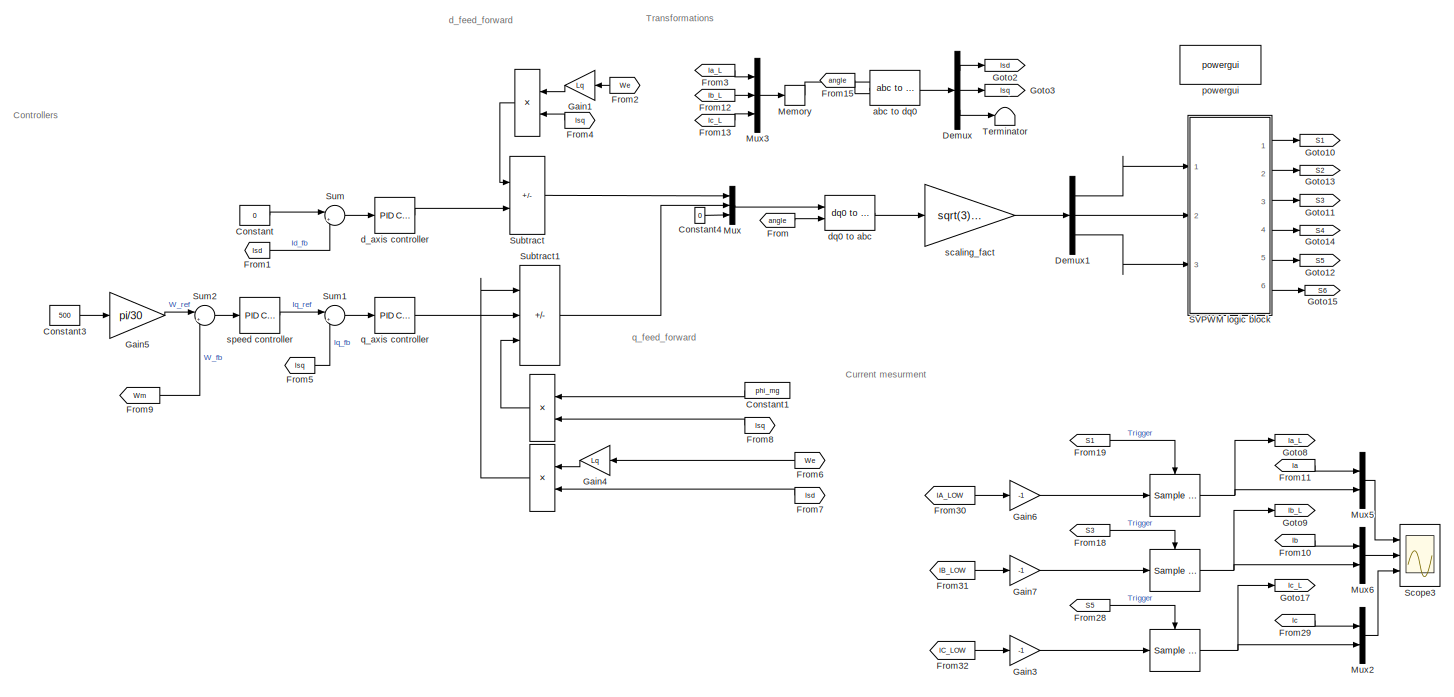
[diagram: root canvas - part 1/3, top left region]
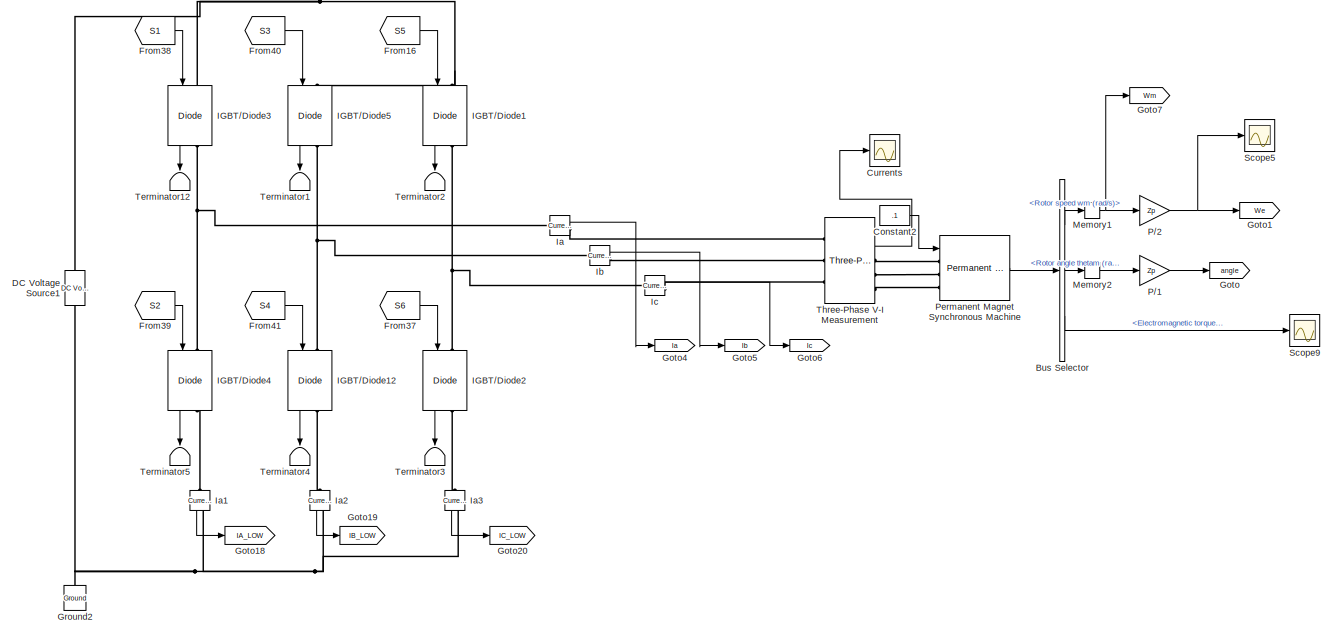
[diagram: root canvas - part 2/3, bottom left region]
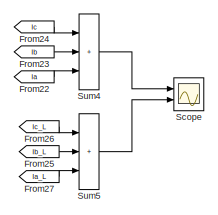
[diagram: root canvas - part 3/3, bottom right region]
MODEL slx_8dce9d9f1083
KIND model
CONFIG AbsTol = auto
CONFIG EnableMultiTasking = off
CONFIG FixedStep = auto
CONFIG InitFcn = %Rs = 2.98;\n%phi_mg = .125;\n%Jm = .47/10000;\n%Bv = 1.1/10000;\n%Zp = 2;\n%Ld = 7/1000;\n%Lq = 7/1000;\n%Tl = 0;\n\nRs = 4.3;\nphi_mg = .272;\nJm = .000179;\nBv = 1.1/10000;\nZp = 4;\nLd = 67e-3;\nLq = 67e-3;\nTl = 0;\n\nVdc = 220*2*sqrt(2);\n\n
CONFIG MaxStep = 1e-3
CONFIG MinStep = auto
CONFIG RelTol = 1e-3
CONFIG SampleTimeConstraint = Unconstrained
CONFIG Solver = ode45
CONFIG SolverName = ode45
CONFIG StartTime = 0.0
CONFIG StopTime = .5
BLOCK [Reference]     REF=dspsigops/Sample
and Hold
  Ports = [1, 1, 0, 1]
  SourceBlock = dspsigops/Sample\nand Hold
  SourceProductBaseCode = DS
  SourceType = Sample and Hold
BLOCK [Reference]        REF=dspsigops/Sample
and Hold
  Ports = [1, 1, 0, 1]
  SourceBlock = dspsigops/Sample\nand Hold
  SourceProductBaseCode = DS
  SourceType = Sample and Hold
BLOCK [Product]          
  NameLocation = top
  Ports = [2, 1]
BLOCK [Product]            
  NameLocation = top
  Ports = [2, 1]
BLOCK [Product]                          
  NameLocation = top
  Ports = [2, 1]
BLOCK [Reference]                                   REF=dspsigops/Sample
and Hold
  Ports = [1, 1, 0, 1]
  SourceBlock = dspsigops/Sample\nand Hold
  SourceProductBaseCode = DS
  SourceType = Sample and Hold
BLOCK [BusSelector] Bus Selector
  OutputSignals = Rotor speed wm (rad/s),Rotor angle thetam (rad),Electromagnetic torque Te (N*m)
  Ports = [1, 3]
BLOCK [Constant] Constant
  Value = 0
BLOCK [Constant] Constant1
  NameLocation = top
  Value = phi_mg
BLOCK [Constant] Constant2
  Value = .1
BLOCK [Constant] Constant3
  Value = 500
BLOCK [Constant] Constant4
  Value = 0
BLOCK [Scope] Currents
  Floating = off
  NumInputPorts = 1
  Ports = [1]
  ScopeSpecificationString = Simulink.scopes.TimeScopeBlockCfg('CurrentConfiguration', extmgr.ConfigurationSet(extmgr.Configuration('Core','General UI',true),extmgr.Configuration('Core','Source UI',true),extmgr.Configuration('Sources','WiredSimulink',true,'DataLoggingVariableName','ScopeData8','DataLoggingSaveFormat','StructureWithTime','DataLoggingDecimation','1','DataLoggingDecimateData',true),extmgr.Configuration('Visuals'...<+1854ch>
BLOCK [Reference] DC Voltage Source1  REF=powerlib/Electrical
Sources/DC Voltage Source
  NameLocation = right
  Ports = [0, 0, 0, 0, 0, 1, 1]
  SourceBlock = powerlib/Electrical\nSources/DC Voltage Source
  SourceProductBaseCode = PS
  SourceType = DC Voltage Source
BLOCK [Demux] Demux
  Outputs = 3
  Ports = [1, 3]
BLOCK [Demux] Demux1
  Outputs = 3
  Ports = [1, 3]
BLOCK [From] From
  GotoTag = angle
BLOCK [From] From1
  GotoTag = Isd
BLOCK [From] From10
  GotoTag = Ib
BLOCK [From] From11
  GotoTag = Ia
BLOCK [From] From12
  GotoTag = Ib_L
BLOCK [From] From13
  GotoTag = Ic_L
BLOCK [From] From15
  GotoTag = angle
BLOCK [From] From16
  GotoTag = S5
BLOCK [From] From18
  GotoTag = S3
BLOCK [From] From19
  GotoTag = S1
BLOCK [From] From2
  GotoTag = We
  NameLocation = top
BLOCK [From] From22
  GotoTag = Ia
BLOCK [From] From23
  GotoTag = Ib
BLOCK [From] From24
  GotoTag = Ic
BLOCK [From] From25
  GotoTag = Ib_L
BLOCK [From] From26
  GotoTag = Ic_L
BLOCK [From] From27
  GotoTag = Ia_L
BLOCK [From] From28
  GotoTag = S5
BLOCK [From] From29
  GotoTag = Ic
BLOCK [From] From3
  GotoTag = Ia_L
BLOCK [From] From30
  GotoTag = IA_LOW
BLOCK [From] From31
  GotoTag = IB_LOW
BLOCK [From] From32
  GotoTag = IC_LOW
BLOCK [From] From37
  GotoTag = S6
BLOCK [From] From38
  GotoTag = S1
BLOCK [From] From39
  GotoTag = S2
BLOCK [From] From4
  GotoTag = Isq
BLOCK [From] From40
  GotoTag = S3
BLOCK [From] From41
  GotoTag = S4
BLOCK [From] From5
  GotoTag = Isq
BLOCK [From] From6
  GotoTag = We
  NameLocation = top
BLOCK [From] From7
  GotoTag = Isd
BLOCK [From] From8
  GotoTag = Isq
BLOCK [From] From9
  GotoTag = Wm
BLOCK [Gain] Gain1
  Gain = Lq
  NameLocation = top
BLOCK [Gain] Gain3
  Gain = -1
BLOCK [Gain] Gain4
  Gain = Lq
  NameLocation = top
BLOCK [Gain] Gain5
  Gain = pi/30
BLOCK [Gain] Gain6
  Gain = -1
BLOCK [Gain] Gain7
  Gain = -1
BLOCK [Goto] Goto
  GotoTag = angle
BLOCK [Goto] Goto1
  GotoTag = We
BLOCK [Goto] Goto10
  GotoTag = S1
BLOCK [Goto] Goto11
  GotoTag = S3
BLOCK [Goto] Goto12
  GotoTag = S5
BLOCK [Goto] Goto13
  GotoTag = S2
BLOCK [Goto] Goto14
  GotoTag = S4
BLOCK [Goto] Goto15
  GotoTag = S6
BLOCK [Goto] Goto17
  GotoTag = Ic_L
BLOCK [Goto] Goto18
  GotoTag = IA_LOW
BLOCK [Goto] Goto19
  GotoTag = IB_LOW
BLOCK [Goto] Goto2
  GotoTag = Isd
BLOCK [Goto] Goto20
  GotoTag = IC_LOW
BLOCK [Goto] Goto3
  GotoTag = Isq
BLOCK [Goto] Goto4
  GotoTag = Ia
BLOCK [Goto] Goto5
  GotoTag = Ib
BLOCK [Goto] Goto6
  GotoTag = Ic
BLOCK [Goto] Goto7
  GotoTag = Wm
BLOCK [Goto] Goto8
  GotoTag = Ia_L
BLOCK [Goto] Goto9
  GotoTag = Ib_L
BLOCK [Reference] Ground2  REF=powerlib/Elements/Ground
  NameLocation = right
  Ports = [0, 0, 0, 0, 0, 1]
  SourceBlock = powerlib/Elements/Ground
  SourceProductBaseCode = PS
  SourceType = Ground
BLOCK [Reference] IGBT//Diode1  REF=powerlib/Power
Electronics/IGBT//Diode
  NameLocation = left
  Ports = [1, 1, 0, 0, 0, 1, 1]
  SourceBlock = powerlib/Power\nElectronics/IGBT//Diode
  SourceProductBaseCode = PS
  SourceType = IGBT/Diode
BLOCK [Reference] IGBT//Diode12  REF=powerlib/Power
Electronics/IGBT//Diode
  NameLocation = left
  Ports = [1, 1, 0, 0, 0, 1, 1]
  SourceBlock = powerlib/Power\nElectronics/IGBT//Diode
  SourceProductBaseCode = PS
  SourceType = IGBT/Diode
BLOCK [Reference] IGBT//Diode2  REF=powerlib/Power
Electronics/IGBT//Diode
  NameLocation = left
  Ports = [1, 1, 0, 0, 0, 1, 1]
  SourceBlock = powerlib/Power\nElectronics/IGBT//Diode
  SourceProductBaseCode = PS
  SourceType = IGBT/Diode
BLOCK [Reference] IGBT//Diode3  REF=powerlib/Power
Electronics/IGBT//Diode
  NameLocation = left
  Ports = [1, 1, 0, 0, 0, 1, 1]
  SourceBlock = powerlib/Power\nElectronics/IGBT//Diode
  SourceProductBaseCode = PS
  SourceType = IGBT/Diode
BLOCK [Reference] IGBT//Diode4  REF=powerlib/Power
Electronics/IGBT//Diode
  NameLocation = left
  Ports = [1, 1, 0, 0, 0, 1, 1]
  SourceBlock = powerlib/Power\nElectronics/IGBT//Diode
  SourceProductBaseCode = PS
  SourceType = IGBT/Diode
BLOCK [Reference] IGBT//Diode5  REF=powerlib/Power
Electronics/IGBT//Diode
  NameLocation = left
  Ports = [1, 1, 0, 0, 0, 1, 1]
  SourceBlock = powerlib/Power\nElectronics/IGBT//Diode
  SourceProductBaseCode = PS
  SourceType = IGBT/Diode
BLOCK [Reference] Ia  REF=powerlib/Measurements/Current Measurement
  Ports = [0, 1, 0, 0, 0, 1, 1]
  SourceBlock = powerlib/Measurements/Current Measurement
  SourceProductBaseCode = PS
  SourceType = Current Measurement
BLOCK [Reference] Ia1  REF=powerlib/Measurements/Current Measurement
  NameLocation = left
  Ports = [0, 1, 0, 0, 0, 1, 1]
  SourceBlock = powerlib/Measurements/Current Measurement
  SourceProductBaseCode = PS
  SourceType = Current Measurement
BLOCK [Reference] Ia2  REF=powerlib/Measurements/Current Measurement
  NameLocation = left
  Ports = [0, 1, 0, 0, 0, 1, 1]
  SourceBlock = powerlib/Measurements/Current Measurement
  SourceProductBaseCode = PS
  SourceType = Current Measurement
BLOCK [Reference] Ia3  REF=powerlib/Measurements/Current Measurement
  NameLocation = left
  Ports = [0, 1, 0, 0, 0, 1, 1]
  SourceBlock = powerlib/Measurements/Current Measurement
  SourceProductBaseCode = PS
  SourceType = Current Measurement
BLOCK [Reference] Ib  REF=powerlib/Measurements/Current Measurement
  Ports = [0, 1, 0, 0, 0, 1, 1]
  SourceBlock = powerlib/Measurements/Current Measurement
  SourceProductBaseCode = PS
  SourceType = Current Measurement
BLOCK [Reference] Ic  REF=powerlib/Measurements/Current Measurement
  Ports = [0, 1, 0, 0, 0, 1, 1]
  SourceBlock = powerlib/Measurements/Current Measurement
  SourceProductBaseCode = PS
  SourceType = Current Measurement
BLOCK [Memory] Memory
  NameLocation = top
BLOCK [Memory] Memory1
  NameLocation = top
BLOCK [Memory] Memory2
  NameLocation = top
BLOCK [Mux] Mux
  DisplayOption = bar
  Inputs = 3
  Ports = [3, 1]
BLOCK [Mux] Mux2
  DisplayOption = bar
  Inputs = 2
  Ports = [2, 1]
BLOCK [Mux] Mux3
  DisplayOption = bar
  Inputs = 3
  Ports = [3, 1]
BLOCK [Mux] Mux5
  DisplayOption = bar
  Inputs = 2
  Ports = [2, 1]
BLOCK [Mux] Mux6
  DisplayOption = bar
  Inputs = 2
  Ports = [2, 1]
BLOCK [Gain] P//1
  Gain = Zp
BLOCK [Gain] P//2
  Gain = Zp
BLOCK [Reference] Permanent Magnet Synchronous Machine  REF=powerlib/Machines/Permanent Magnet
Synchronous Machine
  Ports = [1, 1, 0, 0, 0, 3]
  SourceBlock = powerlib/Machines/Permanent Magnet\nSynchronous Machine
  SourceProductBaseCode = PS
  SourceType = Permanent Magnet Synchronous Machine
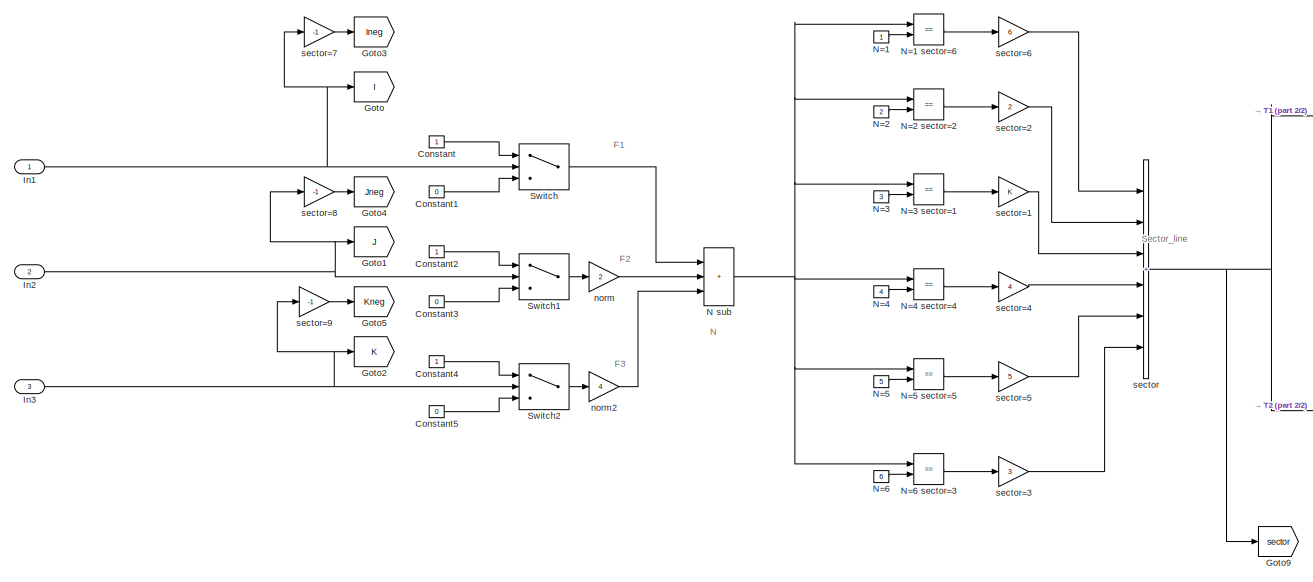
[diagram: SVPWM logic block - part 1/2, left side, full height]
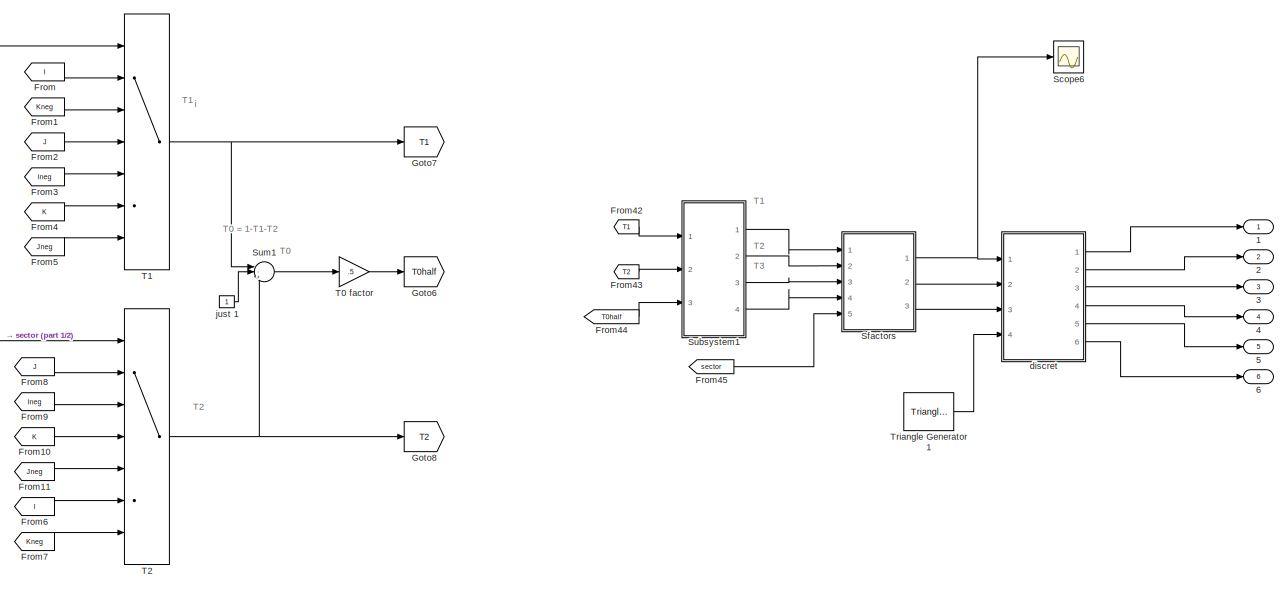
[diagram: SVPWM logic block - part 2/2, right side, full height]
BLOCK [SubSystem] SVPWM logic block
  Ports = [3, 6]
  RequestExecContextInheritance = off
BLOCK [Outport] SVPWM logic block/1
  VectorParamsAs1DForOutWhenUnconnected = off
BLOCK [Outport] SVPWM logic block/2
  Port = 2
  VectorParamsAs1DForOutWhenUnconnected = off
BLOCK [Outport] SVPWM logic block/3
  Port = 3
  VectorParamsAs1DForOutWhenUnconnected = off
BLOCK [Outport] SVPWM logic block/4
  Port = 4
  VectorParamsAs1DForOutWhenUnconnected = off
BLOCK [Outport] SVPWM logic block/5
  Port = 5
  VectorParamsAs1DForOutWhenUnconnected = off
BLOCK [Outport] SVPWM logic block/6
  Port = 6
  VectorParamsAs1DForOutWhenUnconnected = off
BLOCK [Constant] SVPWM logic block/Constant
BLOCK [Constant] SVPWM logic block/Constant1
  Value = 0
BLOCK [Constant] SVPWM logic block/Constant2
BLOCK [Constant] SVPWM logic block/Constant3
  Value = 0
BLOCK [Constant] SVPWM logic block/Constant4
BLOCK [Constant] SVPWM logic block/Constant5
  Value = 0
BLOCK [From] SVPWM logic block/From
  GotoTag = I
BLOCK [From] SVPWM logic block/From1
  GotoTag = Kneg
BLOCK [From] SVPWM logic block/From10
  GotoTag = K
BLOCK [From] SVPWM logic block/From11
  GotoTag = Jneg
BLOCK [From] SVPWM logic block/From2
  GotoTag = J
BLOCK [From] SVPWM logic block/From3
  GotoTag = Ineg
BLOCK [From] SVPWM logic block/From4
  GotoTag = K
BLOCK [From] SVPWM logic block/From42
  GotoTag = T1
BLOCK [From] SVPWM logic block/From43
  GotoTag = T2
BLOCK [From] SVPWM logic block/From44
  GotoTag = T0half
BLOCK [From] SVPWM logic block/From45
  GotoTag = sector
BLOCK [From] SVPWM logic block/From5
  GotoTag = Jneg
BLOCK [From] SVPWM logic block/From6
  GotoTag = I
BLOCK [From] SVPWM logic block/From7
  GotoTag = Kneg
BLOCK [From] SVPWM logic block/From8
  GotoTag = J
BLOCK [From] SVPWM logic block/From9
  GotoTag = Ineg
BLOCK [Goto] SVPWM logic block/Goto
  GotoTag = I
BLOCK [Goto] SVPWM logic block/Goto1
  GotoTag = J
BLOCK [Goto] SVPWM logic block/Goto2
  GotoTag = K
BLOCK [Goto] SVPWM logic block/Goto3
  GotoTag = Ineg
BLOCK [Goto] SVPWM logic block/Goto4
  GotoTag = Jneg
BLOCK [Goto] SVPWM logic block/Goto5
  GotoTag = Kneg
BLOCK [Goto] SVPWM logic block/Goto6
  GotoTag = T0half
BLOCK [Goto] SVPWM logic block/Goto7
  GotoTag = T1
BLOCK [Goto] SVPWM logic block/Goto8
  GotoTag = T2
BLOCK [Goto] SVPWM logic block/Goto9
  GotoTag = sector
BLOCK [Inport] SVPWM logic block/In1
BLOCK [Inport] SVPWM logic block/In2
  Port = 2
BLOCK [Inport] SVPWM logic block/In3
  Port = 3
BLOCK [Sum] SVPWM logic block/N sub
  IconShape = rectangular
  Inputs = +++
  Ports = [3, 1]
BLOCK [Constant] SVPWM logic block/N=1
BLOCK [RelationalOperator] SVPWM logic block/N=1 sector=6
  InputSameDT = off
  Operator = ==
  OutDataTypeStr = boolean
  Ports = [2, 1]
BLOCK [Constant] SVPWM logic block/N=2
  Value = 2
BLOCK [RelationalOperator] SVPWM logic block/N=2 sector=2
  InputSameDT = off
  Operator = ==
  OutDataTypeStr = boolean
  Ports = [2, 1]
BLOCK [Constant] SVPWM logic block/N=3
  Value = 3
BLOCK [RelationalOperator] SVPWM logic block/N=3 sector=1
  InputSameDT = off
  Operator = ==
  OutDataTypeStr = boolean
  Ports = [2, 1]
BLOCK [Constant] SVPWM logic block/N=4
  Value = 4
BLOCK [RelationalOperator] SVPWM logic block/N=4 sector=4
  InputSameDT = off
  Operator = ==
  OutDataTypeStr = boolean
  Ports = [2, 1]
BLOCK [Constant] SVPWM logic block/N=5
  Value = 5
BLOCK [RelationalOperator] SVPWM logic block/N=5 sector=5
  InputSameDT = off
  Operator = ==
  OutDataTypeStr = boolean
  Ports = [2, 1]
BLOCK [Constant] SVPWM logic block/N=6
  Value = 6
BLOCK [RelationalOperator] SVPWM logic block/N=6 sector=3
  InputSameDT = off
  Operator = ==
  OutDataTypeStr = boolean
  Ports = [2, 1]
BLOCK [Scope] SVPWM logic block/Scope6
  Floating = off
  NumInputPorts = 1
  Ports = [1]
  ScopeSpecificationString = Simulink.scopes.TimeScopeBlockCfg('CurrentConfiguration', extmgr.ConfigurationSet(extmgr.Configuration('Core','General UI',true),extmgr.Configuration('Core','Source UI',true),extmgr.Configuration('Sources','WiredSimulink',true,'DataLoggingVariableName','ScopeData14','DataLoggingSaveFormat','StructureWithTime','DataLoggingDecimation','1','DataLoggingDecimateData',true),extmgr.Configuration('Visuals...<+1779ch>
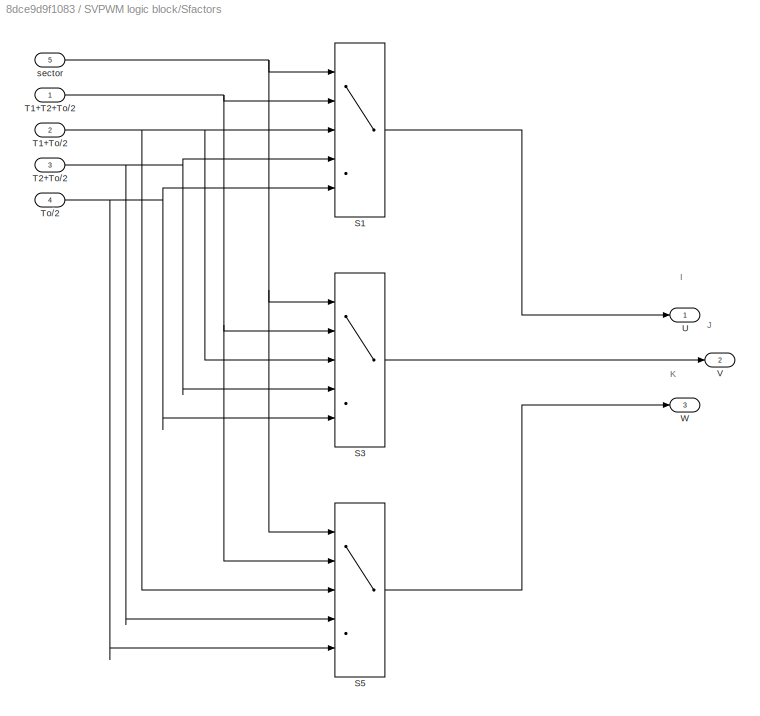
BLOCK [SubSystem] SVPWM logic block/Sfactors
  Ports = [5, 3]
  RequestExecContextInheritance = off
BLOCK [MultiPortSwitch] SVPWM logic block/Sfactors/S1
  DataPortIndices = {[1,6],2,5,[3,4]}
  DataPortOrder = Specify indices
  DiagnosticForDefault = None
  InputSameDT = off
  Inputs = 4
  Ports = [5, 1]
  SaturateOnIntegerOverflow = off
BLOCK [MultiPortSwitch] SVPWM logic block/Sfactors/S3
  DataPortIndices = {[2,3],4,1,[5,6]}
  DataPortOrder = Specify indices
  DiagnosticForDefault = None
  InputSameDT = off
  Inputs = 4
  Ports = [5, 1]
  SaturateOnIntegerOverflow = off
BLOCK [MultiPortSwitch] SVPWM logic block/Sfactors/S5
  DataPortIndices = {[4,5],6,3,[1,2]}
  DataPortOrder = Specify indices
  DiagnosticForDefault = None
  InputSameDT = off
  Inputs = 4
  Ports = [5, 1]
  SaturateOnIntegerOverflow = off
BLOCK [Inport] SVPWM logic block/Sfactors/T1+T2+To//2
BLOCK [Inport] SVPWM logic block/Sfactors/T1+To//2
  Port = 2
BLOCK [Inport] SVPWM logic block/Sfactors/T2+To//2
  Port = 3
BLOCK [Inport] SVPWM logic block/Sfactors/To//2
  Port = 4
BLOCK [Outport] SVPWM logic block/Sfactors/U
  VectorParamsAs1DForOutWhenUnconnected = off
BLOCK [Outport] SVPWM logic block/Sfactors/V
  Port = 2
  VectorParamsAs1DForOutWhenUnconnected = off
BLOCK [Outport] SVPWM logic block/Sfactors/W
  Port = 3
  VectorParamsAs1DForOutWhenUnconnected = off
BLOCK [Inport] SVPWM logic block/Sfactors/sector 
  Port = 5
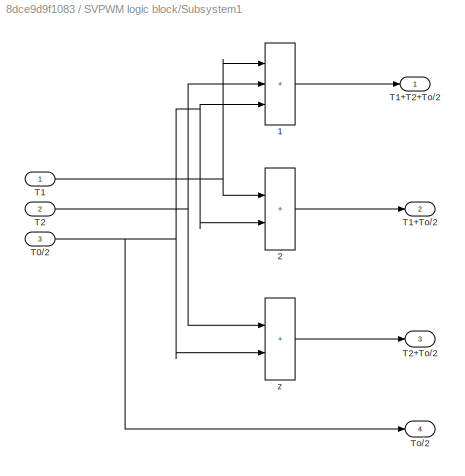
BLOCK [SubSystem] SVPWM logic block/Subsystem1
  Ports = [3, 4]
  RequestExecContextInheritance = off
BLOCK [Sum] SVPWM logic block/Subsystem1/1
  IconShape = rectangular
  Inputs = +++
  Ports = [3, 1]
BLOCK [Sum] SVPWM logic block/Subsystem1/2
  IconShape = rectangular
  Ports = [2, 1]
BLOCK [Inport] SVPWM logic block/Subsystem1/T0//2
  Port = 3
BLOCK [Inport] SVPWM logic block/Subsystem1/T1
BLOCK [Outport] SVPWM logic block/Subsystem1/T1+T2+To//2
  VectorParamsAs1DForOutWhenUnconnected = off
BLOCK [Outport] SVPWM logic block/Subsystem1/T1+To//2
  Port = 2
  VectorParamsAs1DForOutWhenUnconnected = off
BLOCK [Inport] SVPWM logic block/Subsystem1/T2
  Port = 2
BLOCK [Outport] SVPWM logic block/Subsystem1/T2+To//2
  Port = 3
  VectorParamsAs1DForOutWhenUnconnected = off
BLOCK [Outport] SVPWM logic block/Subsystem1/To//2
  Port = 4
  VectorParamsAs1DForOutWhenUnconnected = off
BLOCK [Sum] SVPWM logic block/Subsystem1/z
  IconShape = rectangular
  Ports = [2, 1]
BLOCK [Sum] SVPWM logic block/Sum1
  Inputs = |-+-
  Ports = [3, 1]
BLOCK [Switch] SVPWM logic block/Switch
  InputSameDT = off
  SaturateOnIntegerOverflow = off
BLOCK [Switch] SVPWM logic block/Switch1
  InputSameDT = off
  SaturateOnIntegerOverflow = off
BLOCK [Switch] SVPWM logic block/Switch2
  InputSameDT = off
  SaturateOnIntegerOverflow = off
BLOCK [Gain] SVPWM logic block/T0 factor
  Gain = .5
BLOCK [MultiPortSwitch] SVPWM logic block/T1
  DataPortIndices = {1,2,3,4,5,6}
  DataPortOrder = Specify indices
  DiagnosticForDefault = None
  InputSameDT = off
  Inputs = 4
  Ports = [7, 1]
  SaturateOnIntegerOverflow = off
BLOCK [MultiPortSwitch] SVPWM logic block/T2
  DataPortIndices = {1,2,3,4,5,6}
  DataPortOrder = Specify indices
  DiagnosticForDefault = None
  InputSameDT = off
  Inputs = 4
  Ports = [7, 1]
  SaturateOnIntegerOverflow = off
BLOCK [Reference] SVPWM logic block/Triangle Generator1  REF=powerlib_meascontrol/Pulse & Signal
Generators/Triangle
Generator
  Ports = [0, 1]
  SourceBlock = powerlib_meascontrol/Pulse & Signal\nGenerators/Triangle\nGenerator
  SourceProductBaseCode = PS
  SourceType = Triangle Generator
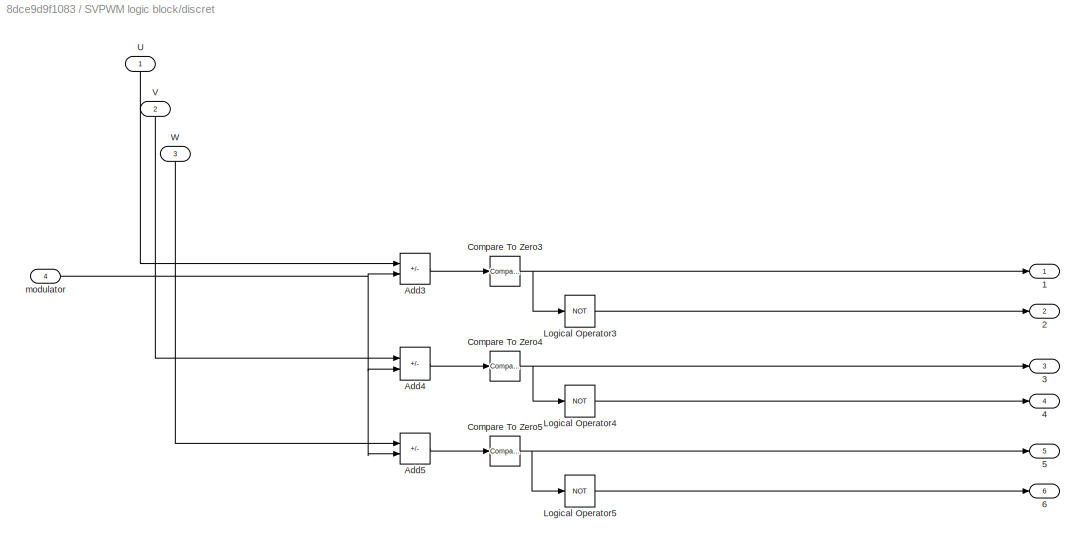
BLOCK [SubSystem] SVPWM logic block/discret
  Ports = [4, 6]
  RequestExecContextInheritance = off
BLOCK [Outport] SVPWM logic block/discret/1
  VectorParamsAs1DForOutWhenUnconnected = off
BLOCK [Outport] SVPWM logic block/discret/2
  Port = 2
  VectorParamsAs1DForOutWhenUnconnected = off
BLOCK [Outport] SVPWM logic block/discret/3
  Port = 3
  VectorParamsAs1DForOutWhenUnconnected = off
BLOCK [Outport] SVPWM logic block/discret/4
  Port = 4
  VectorParamsAs1DForOutWhenUnconnected = off
BLOCK [Outport] SVPWM logic block/discret/5
  Port = 5
  VectorParamsAs1DForOutWhenUnconnected = off
BLOCK [Outport] SVPWM logic block/discret/6
  Port = 6
  VectorParamsAs1DForOutWhenUnconnected = off
BLOCK [Sum] SVPWM logic block/discret/Add3
  IconShape = rectangular
  Inputs = -+
  Ports = [2, 1]
BLOCK [Sum] SVPWM logic block/discret/Add4
  IconShape = rectangular
  Inputs = -+
  Ports = [2, 1]
BLOCK [Sum] SVPWM logic block/discret/Add5
  IconShape = rectangular
  Inputs = -+
  Ports = [2, 1]
BLOCK [Reference] SVPWM logic block/discret/Compare To Zero3  REF=simulink/Logic and Bit
Operations/Compare
To Zero
  Ports = [1, 1]
  SourceBlock = simulink/Logic and Bit\nOperations/Compare\nTo Zero
  SourceProductBaseCode = SL
  SourceType = Compare To Zero
BLOCK [Reference] SVPWM logic block/discret/Compare To Zero4  REF=simulink/Logic and Bit
Operations/Compare
To Zero
  Ports = [1, 1]
  SourceBlock = simulink/Logic and Bit\nOperations/Compare\nTo Zero
  SourceProductBaseCode = SL
  SourceType = Compare To Zero
BLOCK [Reference] SVPWM logic block/discret/Compare To Zero5  REF=simulink/Logic and Bit
Operations/Compare
To Zero
  Ports = [1, 1]
  SourceBlock = simulink/Logic and Bit\nOperations/Compare\nTo Zero
  SourceProductBaseCode = SL
  SourceType = Compare To Zero
BLOCK [Logic] SVPWM logic block/discret/Logical Operator3
  AllPortsSameDT = off
  Operator = NOT
  OutDataTypeStr = boolean
  Ports = [1, 1]
BLOCK [Logic] SVPWM logic block/discret/Logical Operator4
  AllPortsSameDT = off
  Operator = NOT
  OutDataTypeStr = boolean
  Ports = [1, 1]
BLOCK [Logic] SVPWM logic block/discret/Logical Operator5
  AllPortsSameDT = off
  Operator = NOT
  OutDataTypeStr = boolean
  Ports = [1, 1]
BLOCK [Inport] SVPWM logic block/discret/U
  NameLocation = right
BLOCK [Inport] SVPWM logic block/discret/V
  NameLocation = right
  Port = 2
BLOCK [Inport] SVPWM logic block/discret/W
  NameLocation = right
  Port = 3
BLOCK [Inport] SVPWM logic block/discret/modulator
  Port = 4
BLOCK [Constant] SVPWM logic block/just 1
BLOCK [Gain] SVPWM logic block/norm
  Gain = 2
BLOCK [Gain] SVPWM logic block/norm2
  Gain = 4
BLOCK [Sum] SVPWM logic block/sector
  IconShape = rectangular
  Inputs = ++++++
  Ports = [6, 1]
BLOCK [Gain] SVPWM logic block/sector=1
BLOCK [Gain] SVPWM logic block/sector=2
  Gain = 2
BLOCK [Gain] SVPWM logic block/sector=3
  Gain = 3
BLOCK [Gain] SVPWM logic block/sector=4
  Gain = 4
BLOCK [Gain] SVPWM logic block/sector=5
  Gain = 5
BLOCK [Gain] SVPWM logic block/sector=6
  Gain = 6
BLOCK [Gain] SVPWM logic block/sector=7
  Gain = -1
BLOCK [Gain] SVPWM logic block/sector=8
  Gain = -1
BLOCK [Gain] SVPWM logic block/sector=9
  Gain = -1
BLOCK [Scope] Scope
  Floating = off
  NumInputPorts = 2
  Ports = [2]
  ScopeSpecificationString = Simulink.scopes.TimeScopeBlockCfg('CurrentConfiguration', extmgr.ConfigurationSet(extmgr.Configuration('Core','General UI',true),extmgr.Configuration('Core','Source UI',true),extmgr.Configuration('Sources','WiredSimulink',true,'DataLoggingVariableName','ScopeData1'),extmgr.Configuration('Visuals','Time Domain',true,'SerializedDisplays',{struct('MinYLimReal','-0.03269','MaxYLimReal','0.00363','YLab...<+1442ch>
BLOCK [Scope] Scope3
  Floating = off
  NumInputPorts = 3
  Ports = [3]
  ScopeSpecificationString = Simulink.scopes.TimeScopeBlockCfg('CurrentConfiguration', extmgr.ConfigurationSet(extmgr.Configuration('Core','General UI',true),extmgr.Configuration('Core','Source UI',true),extmgr.Configuration('Sources','WiredSimulink',true,'DataLoggingVariableName','ScopeData1'),extmgr.Configuration('Visuals','Time Domain',true,'SerializedDisplays',{struct('MinYLimReal','-0.14657','MaxYLimReal','0.31525','YLab...<+2747ch>
BLOCK [Scope] Scope5
  Floating = off
  NumInputPorts = 1
  Ports = [1]
  ScopeSpecificationString = Simulink.scopes.TimeScopeBlockCfg('CurrentConfiguration', extmgr.ConfigurationSet(extmgr.Configuration('Core','General UI',true),extmgr.Configuration('Core','Source UI',true),extmgr.Configuration('Sources','WiredSimulink',true,'DataLoggingVariableName','ScopeData5','DataLoggingSaveFormat','StructureWithTime','DataLoggingDecimation','1','DataLoggingDecimateData',true),extmgr.Configuration('Visuals'...<+1791ch>
BLOCK [Scope] Scope9
  Floating = off
  NumInputPorts = 1
  Ports = [1]
  ScopeSpecificationString = Simulink.scopes.TimeScopeBlockCfg('CurrentConfiguration', extmgr.ConfigurationSet(extmgr.Configuration('Core','General UI',true),extmgr.Configuration('Core','Source UI',true),extmgr.Configuration('Sources','WiredSimulink',true,'DataLoggingVariableName','ScopeData6','DataLoggingSaveFormat','StructureWithTime','DataLoggingDecimation','1','DataLoggingDecimateData',true),extmgr.Configuration('Visuals'...<+1803ch>
BLOCK [Sum] Subtract
  IconShape = rectangular
  Inputs = -+
  Ports = [2, 1]
BLOCK [Sum] Subtract1
  IconShape = rectangular
  Inputs = -++
  Ports = [3, 1]
BLOCK [Sum] Sum
  Inputs = |+-
  Ports = [2, 1]
BLOCK [Sum] Sum1
  Inputs = |+-
  Ports = [2, 1]
BLOCK [Sum] Sum2
  Inputs = |+-
  Ports = [2, 1]
BLOCK [Sum] Sum4
  IconShape = rectangular
  Inputs = +++
  Ports = [3, 1]
BLOCK [Sum] Sum5
  IconShape = rectangular
  Inputs = +++
  Ports = [3, 1]
BLOCK [Terminator] Terminator
BLOCK [Terminator] Terminator1
  NameLocation = left
BLOCK [Terminator] Terminator12
  NameLocation = left
BLOCK [Terminator] Terminator2
  NameLocation = left
BLOCK [Terminator] Terminator3
  NameLocation = left
BLOCK [Terminator] Terminator4
  NameLocation = left
BLOCK [Terminator] Terminator5
  NameLocation = left
BLOCK [Reference] Three-Phase V-I Measurement  REF=powerlib/Measurements/Three-Phase
V-I Measurement
  Ports = [0, 2, 0, 0, 0, 3, 3]
  SourceBlock = powerlib/Measurements/Three-Phase\nV-I Measurement
  SourceProductBaseCode = PS
  SourceType = Three-Phase VI Measurement
BLOCK [Reference] abc to dq0  REF=powerlib_meascontrol/Transformations/abc to dq0
  Ports = [2, 1]
  SourceBlock = powerlib_meascontrol/Transformations/abc to dq0
  SourceProductBaseCode = PS
  SourceType = abc to dq0 Transformation
BLOCK [Reference] d_axis controller  REF=simulink/Continuous/PID Controller
  Ports = [1, 1]
  SourceBlock = simulink/Continuous/PID Controller
  SourceProductBaseCode = SL
  SourceType = PID 1dof
BLOCK [Reference] dq0 to abc  REF=powerlib_meascontrol/Transformations/dq0 to abc
  Ports = [2, 1]
  SourceBlock = powerlib_meascontrol/Transformations/dq0 to abc
  SourceProductBaseCode = PS
  SourceType = dq0 to abc Transformation
BLOCK [Reference] powergui  REF=powerlib/powergui
  Ports = []
  Priority = 1
  SourceBlock = powerlib/powergui
  SourceProductBaseCode = PS
  SourceType = PSB option menu block
BLOCK [Reference] q_axis controller  REF=simulink/Continuous/PID Controller
  Ports = [1, 1]
  SourceBlock = simulink/Continuous/PID Controller
  SourceProductBaseCode = SL
  SourceType = PID 1dof
BLOCK [Gain] scaling_fact
  Gain = sqrt(3)/(2*Vdc)
BLOCK [Reference] speed controller  REF=simulink/Continuous/PID Controller
  Ports = [1, 1]
  SourceBlock = simulink/Continuous/PID Controller
  SourceProductBaseCode = SL
  SourceType = PID 1dof
ANNOTATION (root): Controllers
ANNOTATION (root): Current mesurment
ANNOTATION (root): Transformations
ANNOTATION (root): d_feed_forward
ANNOTATION (root): q_feed_forward
ANNOTATION SVPWM logic block: F1
ANNOTATION SVPWM logic block: F2
ANNOTATION SVPWM logic block: F3
ANNOTATION SVPWM logic block: N
ANNOTATION SVPWM logic block: Sector_line
ANNOTATION SVPWM logic block: T0
ANNOTATION SVPWM logic block: T0 = 1-T1-T2
ANNOTATION SVPWM logic block: T1
ANNOTATION SVPWM logic block: T2
ANNOTATION SVPWM logic block: T3
ANNOTATION SVPWM logic block: i
ANNOTATION SVPWM logic block/Sfactors: I
ANNOTATION SVPWM logic block/Sfactors: J
ANNOTATION SVPWM logic block/Sfactors: K
NET                                 :1 -> Goto17:1, Mux2:2
LINE                          :1 -> Subtract1:3
LINE            :1 -> Subtract:1
LINE          :1 -> Subtract1:1
NET      :1 -> Goto9:1, Mux6:2
NET   :1 -> Goto8:1, Mux5:2
LINE Bus Selector:1 -> Memory1:1
LINE Bus Selector:2 -> Memory2:1
LINE Bus Selector:3 -> Scope9:1
LINE Constant1:1 ->                          :1
LINE Constant2:1 -> Permanent Magnet Synchronous Machine:1
LINE Constant3:1 -> Gain5:1
LINE Constant4:1 -> Mux:3
LINE Constant:1 -> Sum:1
LINE Demux1:1 -> SVPWM logic block:1
LINE Demux1:2 -> SVPWM logic block:2
LINE Demux1:3 -> SVPWM logic block:3
LINE Demux:1 -> Goto2:1
LINE Demux:2 -> Goto3:1
LINE Demux:3 -> Terminator:1
LINE From10:1 -> Mux6:1
LINE From11:1 -> Mux5:1
LINE From12:1 -> Mux3:2
LINE From13:1 -> Mux3:3
LINE From15:1 -> abc to dq0:2
LINE From16:1 -> IGBT//Diode1:1
LINE From18:1 ->      :trigger
LINE From19:1 ->   :trigger
LINE From1:1 -> Sum:2
LINE From22:1 -> Sum4:3
LINE From23:1 -> Sum4:2
LINE From24:1 -> Sum4:1
LINE From25:1 -> Sum5:2
LINE From26:1 -> Sum5:1
LINE From27:1 -> Sum5:3
LINE From28:1 ->                                 :trigger
LINE From29:1 -> Mux2:1
LINE From2:1 -> Gain1:1
LINE From30:1 -> Gain6:1
LINE From31:1 -> Gain7:1
LINE From32:1 -> Gain3:1
LINE From37:1 -> IGBT//Diode2:1
LINE From38:1 -> IGBT//Diode3:1
LINE From39:1 -> IGBT//Diode4:1
LINE From3:1 -> Mux3:1
LINE From40:1 -> IGBT//Diode5:1
LINE From41:1 -> IGBT//Diode12:1
LINE From4:1 ->            :2
LINE From5:1 -> Sum1:2
LINE From6:1 -> Gain4:1
LINE From7:1 ->          :2
LINE From8:1 ->                          :2
LINE From9:1 -> Sum2:2
LINE From:1 -> dq0 to abc:2
LINE Gain1:1 ->            :1
LINE Gain3:1 ->                                 :1
LINE Gain4:1 ->          :1
LINE Gain5:1 -> Sum2:1
LINE Gain6:1 ->   :1
LINE Gain7:1 ->      :1
LINE IGBT//Diode12:1 -> Terminator4:1
LINE IGBT//Diode1:1 -> Terminator2:1
LINE IGBT//Diode2:1 -> Terminator3:1
LINE IGBT//Diode3:1 -> Terminator12:1
LINE IGBT//Diode4:1 -> Terminator5:1
LINE IGBT//Diode5:1 -> Terminator1:1
LINE Ia1:1 -> Goto18:1
LINE Ia2:1 -> Goto19:1
LINE Ia3:1 -> Goto20:1
LINE Ia:1 -> Goto4:1
LINE Ib:1 -> Goto5:1
LINE Ic:1 -> Goto6:1
NET Memory1:1 -> Goto7:1, P//2:1
LINE Memory2:1 -> P//1:1
LINE Memory:1 -> abc to dq0:1
LINE Mux2:1 -> Scope3:3
LINE Mux3:1 -> Memory:1
LINE Mux5:1 -> Scope3:1
LINE Mux6:1 -> Scope3:2
LINE Mux:1 -> dq0 to abc:1
LINE P//1:1 -> Goto:1
NET P//2:1 -> Goto1:1, Scope5:1
LINE Permanent Magnet Synchronous Machine:1 -> Bus Selector:1
LINE SVPWM logic block/Constant1:1 -> SVPWM logic block/Switch:3
LINE SVPWM logic block/Constant2:1 -> SVPWM logic block/Switch1:1
LINE SVPWM logic block/Constant3:1 -> SVPWM logic block/Switch1:3
LINE SVPWM logic block/Constant4:1 -> SVPWM logic block/Switch2:1
LINE SVPWM logic block/Constant5:1 -> SVPWM logic block/Switch2:3
LINE SVPWM logic block/Constant:1 -> SVPWM logic block/Switch:1
LINE SVPWM logic block/From10:1 -> SVPWM logic block/T2:4
LINE SVPWM logic block/From11:1 -> SVPWM logic block/T2:5
LINE SVPWM logic block/From1:1 -> SVPWM logic block/T1:3
LINE SVPWM logic block/From2:1 -> SVPWM logic block/T1:4
LINE SVPWM logic block/From3:1 -> SVPWM logic block/T1:5
LINE SVPWM logic block/From42:1 -> SVPWM logic block/Subsystem1:1
LINE SVPWM logic block/From43:1 -> SVPWM logic block/Subsystem1:2
LINE SVPWM logic block/From44:1 -> SVPWM logic block/Subsystem1:3
LINE SVPWM logic block/From45:1 -> SVPWM logic block/Sfactors:5
LINE SVPWM logic block/From4:1 -> SVPWM logic block/T1:6
LINE SVPWM logic block/From5:1 -> SVPWM logic block/T1:7
LINE SVPWM logic block/From6:1 -> SVPWM logic block/T2:6
LINE SVPWM logic block/From7:1 -> SVPWM logic block/T2:7
LINE SVPWM logic block/From8:1 -> SVPWM logic block/T2:2
LINE SVPWM logic block/From9:1 -> SVPWM logic block/T2:3
LINE SVPWM logic block/From:1 -> SVPWM logic block/T1:2
NET SVPWM logic block/In1:1 -> SVPWM logic block/Goto:1, SVPWM logic block/Switch:2, SVPWM logic block/sector=7:1
NET SVPWM logic block/In2:1 -> SVPWM logic block/Goto1:1, SVPWM logic block/Switch1:2, SVPWM logic block/sector=8:1
NET SVPWM logic block/In3:1 -> SVPWM logic block/Goto2:1, SVPWM logic block/Switch2:2, SVPWM logic block/sector=9:1
NET SVPWM logic block/N sub:1 -> SVPWM logic block/N=1 sector=6:1, SVPWM logic block/N=2 sector=2:1, SVPWM logic block/N=3 sector=1:1, SVPWM logic block/N=4 sector=4:1, SVPWM logic block/N=5 sector=5:1, SVPWM logic block/N=6 sector=3:1
LINE SVPWM logic block/N=1 sector=6:1 -> SVPWM logic block/sector=6:1
LINE SVPWM logic block/N=1:1 -> SVPWM logic block/N=1 sector=6:2
LINE SVPWM logic block/N=2 sector=2:1 -> SVPWM logic block/sector=2:1
LINE SVPWM logic block/N=2:1 -> SVPWM logic block/N=2 sector=2:2
LINE SVPWM logic block/N=3 sector=1:1 -> SVPWM logic block/sector=1:1
LINE SVPWM logic block/N=3:1 -> SVPWM logic block/N=3 sector=1:2
LINE SVPWM logic block/N=4 sector=4:1 -> SVPWM logic block/sector=4:1
LINE SVPWM logic block/N=4:1 -> SVPWM logic block/N=4 sector=4:2
LINE SVPWM logic block/N=5 sector=5:1 -> SVPWM logic block/sector=5:1
LINE SVPWM logic block/N=5:1 -> SVPWM logic block/N=5 sector=5:2
LINE SVPWM logic block/N=6 sector=3:1 -> SVPWM logic block/sector=3:1
LINE SVPWM logic block/N=6:1 -> SVPWM logic block/N=6 sector=3:2
LINE SVPWM logic block/Sfactors/S1:1 -> SVPWM logic block/Sfactors/U:1
LINE SVPWM logic block/Sfactors/S3:1 -> SVPWM logic block/Sfactors/V:1
LINE SVPWM logic block/Sfactors/S5:1 -> SVPWM logic block/Sfactors/W:1
NET SVPWM logic block/Sfactors/T1+T2+To//2:1 -> SVPWM logic block/Sfactors/S1:2, SVPWM logic block/Sfactors/S3:2, SVPWM logic block/Sfactors/S5:2
NET SVPWM logic block/Sfactors/T1+To//2:1 -> SVPWM logic block/Sfactors/S1:3, SVPWM logic block/Sfactors/S3:3, SVPWM logic block/Sfactors/S5:3
NET SVPWM logic block/Sfactors/T2+To//2:1 -> SVPWM logic block/Sfactors/S1:4, SVPWM logic block/Sfactors/S3:4, SVPWM logic block/Sfactors/S5:4
NET SVPWM logic block/Sfactors/To//2:1 -> SVPWM logic block/Sfactors/S1:5, SVPWM logic block/Sfactors/S3:5, SVPWM logic block/Sfactors/S5:5
NET SVPWM logic block/Sfactors/sector :1 -> SVPWM logic block/Sfactors/S1:1, SVPWM logic block/Sfactors/S3:1, SVPWM logic block/Sfactors/S5:1
NET SVPWM logic block/Sfactors:1 -> SVPWM logic block/Scope6:1, SVPWM logic block/discret:1
LINE SVPWM logic block/Sfactors:2 -> SVPWM logic block/discret:2
LINE SVPWM logic block/Sfactors:3 -> SVPWM logic block/discret:3
LINE SVPWM logic block/Subsystem1/1:1 -> SVPWM logic block/Subsystem1/T1+T2+To//2:1
LINE SVPWM logic block/Subsystem1/2:1 -> SVPWM logic block/Subsystem1/T1+To//2:1
NET SVPWM logic block/Subsystem1/T0//2:1 -> SVPWM logic block/Subsystem1/1:3, SVPWM logic block/Subsystem1/2:2, SVPWM logic block/Subsystem1/To//2:1, SVPWM logic block/Subsystem1/z:2
NET SVPWM logic block/Subsystem1/T1:1 -> SVPWM logic block/Subsystem1/1:1, SVPWM logic block/Subsystem1/2:1
NET SVPWM logic block/Subsystem1/T2:1 -> SVPWM logic block/Subsystem1/1:2, SVPWM logic block/Subsystem1/z:1
LINE SVPWM logic block/Subsystem1/z:1 -> SVPWM logic block/Subsystem1/T2+To//2:1
LINE SVPWM logic block/Subsystem1:1 -> SVPWM logic block/Sfactors:1
LINE SVPWM logic block/Subsystem1:2 -> SVPWM logic block/Sfactors:2
LINE SVPWM logic block/Subsystem1:3 -> SVPWM logic block/Sfactors:3
LINE SVPWM logic block/Subsystem1:4 -> SVPWM logic block/Sfactors:4
LINE SVPWM logic block/Sum1:1 -> SVPWM logic block/T0 factor:1
LINE SVPWM logic block/Switch1:1 -> SVPWM logic block/norm:1
LINE SVPWM logic block/Switch2:1 -> SVPWM logic block/norm2:1
LINE SVPWM logic block/Switch:1 -> SVPWM logic block/N sub:1
LINE SVPWM logic block/T0 factor:1 -> SVPWM logic block/Goto6:1
NET SVPWM logic block/T1:1 -> SVPWM logic block/Goto7:1, SVPWM logic block/Sum1:1
NET SVPWM logic block/T2:1 -> SVPWM logic block/Goto8:1, SVPWM logic block/Sum1:3
LINE SVPWM logic block/Triangle Generator1:1 -> SVPWM logic block/discret:4
LINE SVPWM logic block/discret/Add3:1 -> SVPWM logic block/discret/Compare To Zero3:1
LINE SVPWM logic block/discret/Add4:1 -> SVPWM logic block/discret/Compare To Zero4:1
LINE SVPWM logic block/discret/Add5:1 -> SVPWM logic block/discret/Compare To Zero5:1
NET SVPWM logic block/discret/Compare To Zero3:1 -> SVPWM logic block/discret/1:1, SVPWM logic block/discret/Logical Operator3:1
NET SVPWM logic block/discret/Compare To Zero4:1 -> SVPWM logic block/discret/3:1, SVPWM logic block/discret/Logical Operator4:1
NET SVPWM logic block/discret/Compare To Zero5:1 -> SVPWM logic block/discret/5:1, SVPWM logic block/discret/Logical Operator5:1
LINE SVPWM logic block/discret/Logical Operator3:1 -> SVPWM logic block/discret/2:1
LINE SVPWM logic block/discret/Logical Operator4:1 -> SVPWM logic block/discret/4:1
LINE SVPWM logic block/discret/Logical Operator5:1 -> SVPWM logic block/discret/6:1
LINE SVPWM logic block/discret/U:1 -> SVPWM logic block/discret/Add3:1
LINE SVPWM logic block/discret/V:1 -> SVPWM logic block/discret/Add4:1
LINE SVPWM logic block/discret/W:1 -> SVPWM logic block/discret/Add5:1
NET SVPWM logic block/discret/modulator:1 -> SVPWM logic block/discret/Add3:2, SVPWM logic block/discret/Add4:2, SVPWM logic block/discret/Add5:2
LINE SVPWM logic block/discret:1 -> SVPWM logic block/1:1
LINE SVPWM logic block/discret:2 -> SVPWM logic block/2:1
LINE SVPWM logic block/discret:3 -> SVPWM logic block/3:1
LINE SVPWM logic block/discret:4 -> SVPWM logic block/4:1
LINE SVPWM logic block/discret:5 -> SVPWM logic block/5:1
LINE SVPWM logic block/discret:6 -> SVPWM logic block/6:1
LINE SVPWM logic block/just 1:1 -> SVPWM logic block/Sum1:2
LINE SVPWM logic block/norm2:1 -> SVPWM logic block/N sub:3
LINE SVPWM logic block/norm:1 -> SVPWM logic block/N sub:2
NET SVPWM logic block/sector:1 -> SVPWM logic block/Goto9:1, SVPWM logic block/T1:1, SVPWM logic block/T2:1
LINE SVPWM logic block/sector=1:1 -> SVPWM logic block/sector:3
LINE SVPWM logic block/sector=2:1 -> SVPWM logic block/sector:2
LINE SVPWM logic block/sector=3:1 -> SVPWM logic block/sector:6
LINE SVPWM logic block/sector=4:1 -> SVPWM logic block/sector:4
LINE SVPWM logic block/sector=5:1 -> SVPWM logic block/sector:5
LINE SVPWM logic block/sector=6:1 -> SVPWM logic block/sector:1
LINE SVPWM logic block/sector=7:1 -> SVPWM logic block/Goto3:1
LINE SVPWM logic block/sector=8:1 -> SVPWM logic block/Goto4:1
LINE SVPWM logic block/sector=9:1 -> SVPWM logic block/Goto5:1
LINE SVPWM logic block:1 -> Goto10:1
LINE SVPWM logic block:2 -> Goto13:1
LINE SVPWM logic block:3 -> Goto11:1
LINE SVPWM logic block:4 -> Goto14:1
LINE SVPWM logic block:5 -> Goto12:1
LINE SVPWM logic block:6 -> Goto15:1
LINE Subtract1:1 -> Mux:2
LINE Subtract:1 -> Mux:1
LINE Sum1:1 -> q_axis controller:1
LINE Sum2:1 -> speed controller:1
LINE Sum4:1 -> Scope:1
LINE Sum5:1 -> Scope:2
LINE Sum:1 -> d_axis controller:1
LINE Three-Phase V-I Measurement:2 -> Currents:1
LINE abc to dq0:1 -> Demux:1
LINE d_axis controller:1 -> Subtract:2
LINE dq0 to abc:1 -> scaling_fact:1
LINE q_axis controller:1 -> Subtract1:2
LINE scaling_fact:1 -> Demux1:1
LINE speed controller:1 -> Sum1:1
PNET net1: DC Voltage Source1:LConn1 -- Ground2:LConn1 -- Ia1:RConn1 -- Ia2:RConn1 -- Ia3:RConn1
PNET net2: DC Voltage Source1:RConn1 -- IGBT//Diode1:LConn1 -- IGBT//Diode3:LConn1 -- IGBT//Diode5:LConn1
PNET net3: IGBT//Diode12:LConn1 -- IGBT//Diode5:RConn1 -- Ib:LConn1
PLINE IGBT//Diode12:RConn1 -- Ia2:LConn1
PNET net4: IGBT//Diode1:RConn1 -- IGBT//Diode2:LConn1 -- Ic:LConn1
PLINE IGBT//Diode2:RConn1 -- Ia3:LConn1
PNET net5: IGBT//Diode3:RConn1 -- IGBT//Diode4:LConn1 -- Ia:LConn1
PLINE IGBT//Diode4:RConn1 -- Ia1:LConn1
PLINE Ia:RConn1 -- Three-Phase V-I Measurement:LConn1
PLINE Ib:RConn1 -- Three-Phase V-I Measurement:LConn2
PLINE Ic:RConn1 -- Three-Phase V-I Measurement:LConn3
PLINE Permanent Magnet Synchronous Machine:LConn1 -- Three-Phase V-I Measurement:RConn1
PLINE Permanent Magnet Synchronous Machine:LConn2 -- Three-Phase V-I Measurement:RConn2
PLINE Permanent Magnet Synchronous Machine:LConn3 -- Three-Phase V-I Measurement:RConn3
note: NET lines group one-source signal fan-out (src -> all destinations, sorted); 1:1 wires keep LINE; PNET lines group multi-terminal physical nets as a canonical sorted terminal list (undirected conserving connections); 2-terminal nets keep the pairwise PLINE form
